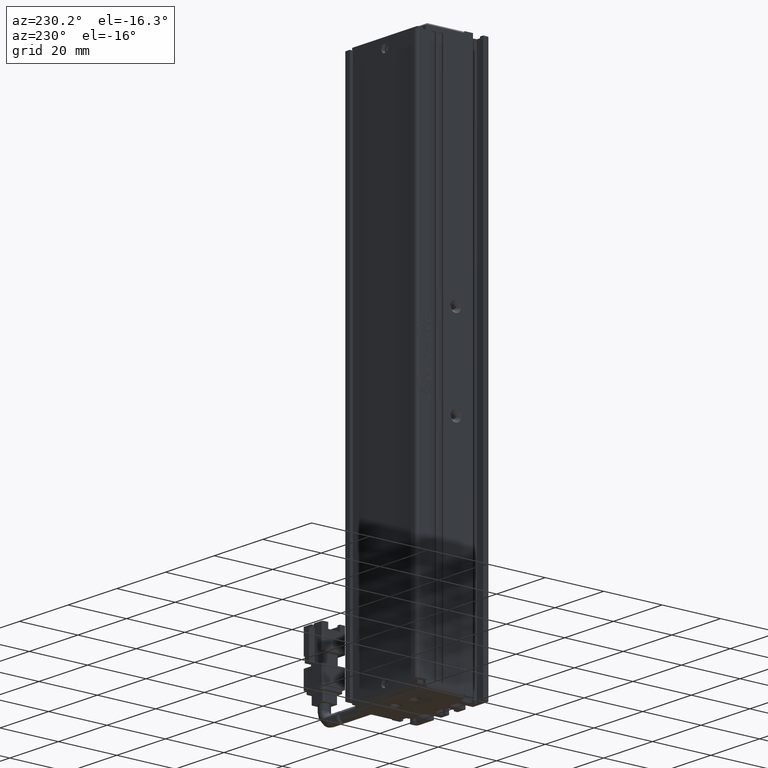
[diagram: clean part render]
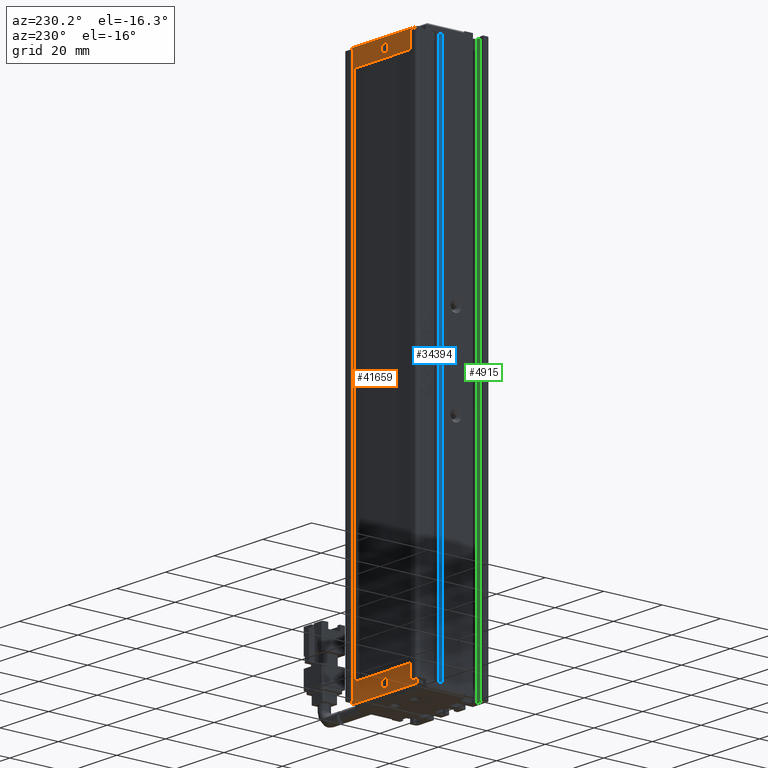
[diagram: same view with three faces highlighted in distinct colors, each labeled with its STEP entity id]
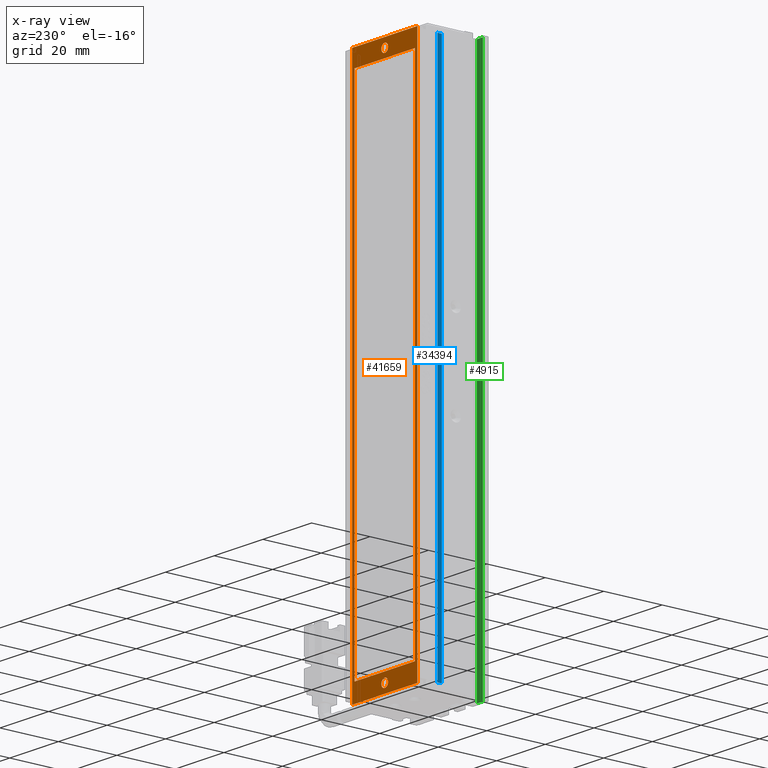
[diagram: x-ray of the same camera — body ghosted, the three highlighted faces saturated]
A machine part, auxiliary view with three faces highlighted in distinct colors.
The next image is the same camera in x-ray (body ghosted, the three faces saturated) — at least one of them is partly hidden behind the body in this view.
Their STEP definitions:

[orange] entity #41659 — the highlighted planar face has unit normal (-0, 1, 0).
#517 = LINE ( 'NONE', #39525, #18274 ) ;
#904 = VERTEX_POINT ( 'NONE', #18212 ) ;
#1120 = EDGE_CURVE ( 'NONE', #37600, #33611, #23385, .T. ) ;
#1175 = VERTEX_POINT ( 'NONE', #37904 ) ;
#1457 = CARTESIAN_POINT ( 'NONE',  ( 53.32537974683541600, 34.19594479660386800, -30.85000000000000100 ) ) ;
#1552 = CARTESIAN_POINT ( 'NONE',  ( 28.52537974683541600, 34.19594479660386800, -30.85000000000000100 ) ) ;
#1686 = VECTOR ( 'NONE', #34123, 1000.000000000000000 ) ;
#1720 = VECTOR ( 'NONE', #15315, 1000.000000000000000 ) ;
#1872 = CIRCLE ( 'NONE', #8053, 1.399999999999998600 ) ;
#2694 = CARTESIAN_POINT ( 'NONE',  ( 54.32537974683539500, 34.19594479660386800, -205.0000000000000000 ) ) ;
#2729 = LINE ( 'NONE', #7997, #20519 ) ;
#2759 = LINE ( 'NONE', #37442, #1686 ) ;
#2965 = PLANE ( 'NONE',  #40819 ) ;
#3867 = EDGE_LOOP ( 'NONE', ( #41657, #12919, #6493, #41032 ) ) ;
#3874 = VERTEX_POINT ( 'NONE', #8227 ) ;
#3949 = CARTESIAN_POINT ( 'NONE',  ( 28.52537974683541600, 34.19594479660386800, -198.8500000000000200 ) ) ;
#4084 = EDGE_CURVE ( 'NONE', #34991, #1175, #42240, .T. ) ;
#6493 = ORIENTED_EDGE ( 'NONE', *, *, #31941, .T. ) ;
#6837 = EDGE_CURVE ( 'NONE', #27129, #35810, #29264, .T. ) ;
#7318 = FACE_BOUND ( 'NONE', #25304, .T. ) ;
#7997 = CARTESIAN_POINT ( 'NONE',  ( 53.32537974683541600, 34.19594479660386800, -198.8500000000000200 ) ) ;
#8053 = AXIS2_PLACEMENT_3D ( 'NONE', #18648, #41988, #22040 ) ;
#8227 = CARTESIAN_POINT ( 'NONE',  ( 40.92537974683538900, 34.19594479660386800, -203.4000000000000100 ) ) ;
#8943 = EDGE_CURVE ( 'NONE', #31298, #27129, #517, .T. ) ;
#9733 = DIRECTION ( 'NONE',  ( 1.779758311459931700E-016, -0.0000000000000000000, 1.000000000000000000 ) ) ;
#9874 = CARTESIAN_POINT ( 'NONE',  ( 27.52537974683542300, 34.19594479660386800, -24.99999999999999300 ) ) ;
#10143 = DIRECTION ( 'NONE',  ( -0.0000000000000000000, -1.000000000000000000, -0.0000000000000000000 ) ) ;
#10531 = VECTOR ( 'NONE', #41953, 1000.000000000000000 ) ;
#10874 = CARTESIAN_POINT ( 'NONE',  ( 40.92537974683538900, 34.19594479660386800, -200.5999999999999700 ) ) ;
#11442 = VECTOR ( 'NONE', #39302, 1000.000000000000000 ) ;
#11976 = CARTESIAN_POINT ( 'NONE',  ( 53.32537974683541600, 34.19594479660386800, -30.85000000000000100 ) ) ;
#12919 = ORIENTED_EDGE ( 'NONE', *, *, #1120, .T. ) ;
#13403 = ORIENTED_EDGE ( 'NONE', *, *, #19464, .F. ) ;
#13640 = EDGE_CURVE ( 'NONE', #30630, #37600, #19485, .T. ) ;
#15243 = CARTESIAN_POINT ( 'NONE',  ( 27.52537974683539100, 34.19594479660386800, -205.0000000000000000 ) ) ;
#15315 = DIRECTION ( 'NONE',  ( 0.0000000000000000000, 0.0000000000000000000, -1.000000000000000000 ) ) ;
#16304 = DIRECTION ( 'NONE',  ( 0.0000000000000000000, 0.0000000000000000000, 1.000000000000000000 ) ) ;
#17323 = FACE_BOUND ( 'NONE', #35745, .T. ) ;
#17882 = CARTESIAN_POINT ( 'NONE',  ( 27.52537974683542300, 34.19594479660386800, -24.99999999999999300 ) ) ;
#18082 = DIRECTION ( 'NONE',  ( -0.0000000000000000000, -1.000000000000000000, -0.0000000000000000000 ) ) ;
#18212 = CARTESIAN_POINT ( 'NONE',  ( 53.32537974683541600, 34.19594479660386800, -198.8500000000000200 ) ) ;
#18274 = VECTOR ( 'NONE', #16304, 1000.000000000000000 ) ;
#18318 = AXIS2_PLACEMENT_3D ( 'NONE', #35423, #35271, #35225 ) ;
#18648 = CARTESIAN_POINT ( 'NONE',  ( 40.92537974683541800, 34.19594479660386800, -27.99999999999999600 ) ) ;
#19214 = AXIS2_PLACEMENT_3D ( 'NONE', #30215, #10143, #33539 ) ;
#19464 = EDGE_CURVE ( 'NONE', #35810, #904, #19540, .T. ) ;
#19485 = LINE ( 'NONE', #22007, #10531 ) ;
#19540 = LINE ( 'NONE', #11976, #1720 ) ;
#19776 = DIRECTION ( 'NONE',  ( -0.0000000000000000000, 1.000000000000000000, 0.0000000000000000000 ) ) ;
#19847 = EDGE_CURVE ( 'NONE', #904, #31298, #2729, .T. ) ;
#20383 = CARTESIAN_POINT ( 'NONE',  ( 27.52537974683541600, 34.19594479660386800, -24.99999999999999300 ) ) ;
#20519 = VECTOR ( 'NONE', #31420, 1000.000000000000000 ) ;
#21682 = ORIENTED_EDGE ( 'NONE', *, *, #19847, .F. ) ;
#22007 = CARTESIAN_POINT ( 'NONE',  ( 27.52537974683539100, 34.19594479660386800, -205.0000000000000000 ) ) ;
#22040 = DIRECTION ( 'NONE',  ( 0.0000000000000000000, 0.0000000000000000000, 1.000000000000000000 ) ) ;
#22131 = VERTEX_POINT ( 'NONE', #10874 ) ;
#22256 = ORIENTED_EDGE ( 'NONE', *, *, #4084, .T. ) ;
#23036 = ORIENTED_EDGE ( 'NONE', *, *, #34605, .T. ) ;
#23385 = LINE ( 'NONE', #9874, #40070 ) ;
#23464 = CARTESIAN_POINT ( 'NONE',  ( 40.92537974683541800, 34.19594479660386800, -26.59999999999999800 ) ) ;
#24800 = ORIENTED_EDGE ( 'NONE', *, *, #26316, .T. ) ;
#25304 = EDGE_LOOP ( 'NONE', ( #22256, #27621 ) ) ;
#26316 = EDGE_CURVE ( 'NONE', #22131, #3874, #30101, .T. ) ;
#27129 = VERTEX_POINT ( 'NONE', #1552 ) ;
#27167 = EDGE_CURVE ( 'NONE', #1175, #34991, #1872, .T. ) ;
#27621 = ORIENTED_EDGE ( 'NONE', *, *, #27167, .T. ) ;
#28317 = ORIENTED_EDGE ( 'NONE', *, *, #8943, .F. ) ;
#28944 = EDGE_LOOP ( 'NONE', ( #21682, #13403, #39783, #28317 ) ) ;
#29264 = LINE ( 'NONE', #39006, #11442 ) ;
#29508 = CIRCLE ( 'NONE', #30463, 1.400000000000012300 ) ;
#30101 = CIRCLE ( 'NONE', #19214, 1.400000000000012300 ) ;
#30215 = CARTESIAN_POINT ( 'NONE',  ( 40.92537974683538900, 34.19594479660386800, -201.9999999999999700 ) ) ;
#30463 = AXIS2_PLACEMENT_3D ( 'NONE', #38096, #18082, #41403 ) ;
#30630 = VERTEX_POINT ( 'NONE', #2694 ) ;
#31298 = VERTEX_POINT ( 'NONE', #3949 ) ;
#31420 = DIRECTION ( 'NONE',  ( -1.000000000000000000, 0.0000000000000000000, 0.0000000000000000000 ) ) ;
#31941 = EDGE_CURVE ( 'NONE', #33611, #41651, #36844, .T. ) ;
#33539 = DIRECTION ( 'NONE',  ( 0.0000000000000000000, 0.0000000000000000000, 1.000000000000000000 ) ) ;
#33611 = VERTEX_POINT ( 'NONE', #20383 ) ;
#34123 = DIRECTION ( 'NONE',  ( -1.711593829630449500E-016, -0.0000000000000000000, -1.000000000000000000 ) ) ;
#34524 = DIRECTION ( 'NONE',  ( 1.000000000000000000, 0.0000000000000000000, -5.551115123125781500E-017 ) ) ;
#34605 = EDGE_CURVE ( 'NONE', #3874, #22131, #29508, .T. ) ;
#34991 = VERTEX_POINT ( 'NONE', #23464 ) ;
#35079 = FACE_OUTER_BOUND ( 'NONE', #3867, .T. ) ;
#35225 = DIRECTION ( 'NONE',  ( 0.0000000000000000000, 0.0000000000000000000, 1.000000000000000000 ) ) ;
#35271 = DIRECTION ( 'NONE',  ( -0.0000000000000000000, -1.000000000000000000, -0.0000000000000000000 ) ) ;
#35423 = CARTESIAN_POINT ( 'NONE',  ( 40.92537974683541800, 34.19594479660386800, -27.99999999999999600 ) ) ;
#35745 = EDGE_LOOP ( 'NONE', ( #24800, #23036 ) ) ;
#35810 = VERTEX_POINT ( 'NONE', #1457 ) ;
#35816 = VECTOR ( 'NONE', #34524, 1000.000000000000000 ) ;
#36255 = CARTESIAN_POINT ( 'NONE',  ( 54.32537974683541600, 34.19594479660386800, -24.99999999999999300 ) ) ;
#36844 = LINE ( 'NONE', #17882, #35816 ) ;
#37442 = CARTESIAN_POINT ( 'NONE',  ( 54.32537974683541600, 34.19594479660386800, -24.99999999999999300 ) ) ;
#37600 = VERTEX_POINT ( 'NONE', #15243 ) ;
#37904 = CARTESIAN_POINT ( 'NONE',  ( 40.92537974683541800, 34.19594479660386800, -29.39999999999999500 ) ) ;
#38096 = CARTESIAN_POINT ( 'NONE',  ( 40.92537974683538900, 34.19594479660386800, -201.9999999999999700 ) ) ;
#39006 = CARTESIAN_POINT ( 'NONE',  ( 28.52537974683541600, 34.19594479660386800, -30.85000000000000100 ) ) ;
#39302 = DIRECTION ( 'NONE',  ( 1.000000000000000000, 0.0000000000000000000, 0.0000000000000000000 ) ) ;
#39525 = CARTESIAN_POINT ( 'NONE',  ( 28.52537974683541600, 34.19594479660386800, -198.8500000000000200 ) ) ;
#39720 = EDGE_CURVE ( 'NONE', #41651, #30630, #2759, .T. ) ;
#39763 = CARTESIAN_POINT ( 'NONE',  ( 54.32537974683541600, 34.19594479660386800, -24.99999999999999300 ) ) ;
#39783 = ORIENTED_EDGE ( 'NONE', *, *, #6837, .F. ) ;
#40070 = VECTOR ( 'NONE', #9733, 1000.000000000000000 ) ;
#40819 = AXIS2_PLACEMENT_3D ( 'NONE', #39763, #19776, #43136 ) ;
#41032 = ORIENTED_EDGE ( 'NONE', *, *, #39720, .T. ) ;
#41403 = DIRECTION ( 'NONE',  ( 0.0000000000000000000, 0.0000000000000000000, 1.000000000000000000 ) ) ;
#41651 = VERTEX_POINT ( 'NONE', #36255 ) ;
#41657 = ORIENTED_EDGE ( 'NONE', *, *, #13640, .T. ) ;
#41659 = ADVANCED_FACE ( 'NONE', ( #35079, #7318, #17323, #41841 ), #2965, .T. ) ;
#41841 = FACE_BOUND ( 'NONE', #28944, .T. ) ;
#41953 = DIRECTION ( 'NONE',  ( -1.000000000000000000, -0.0000000000000000000, 5.551115123125781500E-017 ) ) ;
#41988 = DIRECTION ( 'NONE',  ( -0.0000000000000000000, -1.000000000000000000, -0.0000000000000000000 ) ) ;
#42240 = CIRCLE ( 'NONE', #18318, 1.399999999999998600 ) ;
#43136 = DIRECTION ( 'NONE',  ( 5.551115123125781500E-017, 0.0000000000000000000, 1.000000000000000000 ) ) ;

[blue] entity #34394 — the highlighted planar face has unit normal (1, 0, -0).
#912 = EDGE_CURVE ( 'NONE', #17155, #35407, #11888, .T. ) ;
#1852 = LINE ( 'NONE', #22475, #43176 ) ;
#2534 = CARTESIAN_POINT ( 'NONE',  ( 26.42537974683541800, 26.69594479660386800, -25.99999999999999600 ) ) ;
#2855 = EDGE_CURVE ( 'NONE', #11232, #39496, #3515, .T. ) ;
#3051 = VECTOR ( 'NONE', #17831, 1000.000000000000000 ) ;
#3515 = LINE ( 'NONE', #18481, #21313 ) ;
#4822 = EDGE_LOOP ( 'NONE', ( #30992, #30308, #18186, #32758 ) ) ;
#7000 = FACE_OUTER_BOUND ( 'NONE', #4822, .T. ) ;
#7996 = CARTESIAN_POINT ( 'NONE',  ( 26.42537974683541800, 26.69594479660386800, -204.0000000000000300 ) ) ;
#8875 = DIRECTION ( 'NONE',  ( 1.000000000000000000, 0.0000000000000000000, -0.0000000000000000000 ) ) ;
#10719 = CARTESIAN_POINT ( 'NONE',  ( 26.42537974683542100, 7.083797468354437600, -26.00000000000001100 ) ) ;
#11232 = VERTEX_POINT ( 'NONE', #41301 ) ;
#11438 = CARTESIAN_POINT ( 'NONE',  ( 26.42537974683542100, 26.69594479660386800, -24.00000000000000700 ) ) ;
#11888 = LINE ( 'NONE', #11438, #3051 ) ;
#12079 = PLANE ( 'NONE',  #29012 ) ;
#12363 = CARTESIAN_POINT ( 'NONE',  ( 26.42537974683541800, 28.19594479660387500, -25.99999999999999600 ) ) ;
#14096 = LINE ( 'NONE', #10719, #30864 ) ;
#14100 = DIRECTION ( 'NONE',  ( -0.0000000000000000000, -1.000000000000000000, -0.0000000000000000000 ) ) ;
#17155 = VERTEX_POINT ( 'NONE', #7996 ) ;
#17831 = DIRECTION ( 'NONE',  ( -0.0000000000000000000, 0.0000000000000000000, 1.000000000000000000 ) ) ;
#18186 = ORIENTED_EDGE ( 'NONE', *, *, #22436, .F. ) ;
#18481 = CARTESIAN_POINT ( 'NONE',  ( 26.42537974683542100, 28.19594479660387200, -24.00000000000000700 ) ) ;
#20366 = EDGE_CURVE ( 'NONE', #39496, #35407, #14096, .T. ) ;
#21313 = VECTOR ( 'NONE', #23290, 1000.000000000000000 ) ;
#22436 = EDGE_CURVE ( 'NONE', #17155, #11232, #1852, .T. ) ;
#22475 = CARTESIAN_POINT ( 'NONE',  ( 26.42537974683542100, 7.083797468354437600, -204.0000000000000300 ) ) ;
#23290 = DIRECTION ( 'NONE',  ( 0.0000000000000000000, -0.0000000000000000000, 1.000000000000000000 ) ) ;
#28880 = CARTESIAN_POINT ( 'NONE',  ( 26.42537974683542100, 7.083797468354437600, -24.00000000000000700 ) ) ;
#29012 = AXIS2_PLACEMENT_3D ( 'NONE', #28880, #8875, #32239 ) ;
#30308 = ORIENTED_EDGE ( 'NONE', *, *, #2855, .F. ) ;
#30864 = VECTOR ( 'NONE', #14100, 1000.000000000000000 ) ;
#30992 = ORIENTED_EDGE ( 'NONE', *, *, #20366, .F. ) ;
#32239 = DIRECTION ( 'NONE',  ( -0.0000000000000000000, 0.0000000000000000000, -1.000000000000000000 ) ) ;
#32490 = DIRECTION ( 'NONE',  ( 0.0000000000000000000, 1.000000000000000000, 0.0000000000000000000 ) ) ;
#32758 = ORIENTED_EDGE ( 'NONE', *, *, #912, .T. ) ;
#34394 = ADVANCED_FACE ( 'NONE', ( #7000 ), #12079, .F. ) ;
#35407 = VERTEX_POINT ( 'NONE', #2534 ) ;
#39496 = VERTEX_POINT ( 'NONE', #12363 ) ;
#41301 = CARTESIAN_POINT ( 'NONE',  ( 26.42537974683541800, 28.19594479660387500, -204.0000000000000300 ) ) ;
#43176 = VECTOR ( 'NONE', #32490, 1000.000000000000000 ) ;

[green] entity #4915 — the highlighted planar face has unit normal (0, -1, 0).
#263 = VERTEX_POINT ( 'NONE', #31024 ) ;
#1691 = DIRECTION ( 'NONE',  ( -1.000000000000000000, -0.0000000000000000000, -0.0000000000000000000 ) ) ;
#2635 = DIRECTION ( 'NONE',  ( 0.0000000000000000000, -0.0000000000000000000, -1.000000000000000000 ) ) ;
#2667 = DIRECTION ( 'NONE',  ( 0.0000000000000000000, -1.000000000000000000, 0.0000000000000000000 ) ) ;
#2716 = CARTESIAN_POINT ( 'NONE',  ( 40.92537974683542500, 11.99594479660386900, -24.00000000000000700 ) ) ;
#3228 = EDGE_CURVE ( 'NONE', #12790, #40446, #34874, .T. ) ;
#3561 = VECTOR ( 'NONE', #28500, 1000.000000000000000 ) ;
#4031 = CARTESIAN_POINT ( 'NONE',  ( 27.22537974683542200, 11.99594479660386900, -24.00000000000000700 ) ) ;
#4915 = ADVANCED_FACE ( 'NONE', ( #21374 ), #5313, .F. ) ;
#5313 = PLANE ( 'NONE',  #43271 ) ;
#6083 = CARTESIAN_POINT ( 'NONE',  ( 27.22537974683542600, 11.99594479660386900, -24.00000000000000700 ) ) ;
#8470 = CARTESIAN_POINT ( 'NONE',  ( 29.72537974683542600, 11.99594479660386900, -24.00000000000000700 ) ) ;
#8536 = VECTOR ( 'NONE', #1691, 1000.000000000000000 ) ;
#12445 = LINE ( 'NONE', #8470, #3561 ) ;
#12619 = EDGE_CURVE ( 'NONE', #40446, #263, #23505, .T. ) ;
#12790 = VERTEX_POINT ( 'NONE', #41370 ) ;
#13382 = ORIENTED_EDGE ( 'NONE', *, *, #12619, .F. ) ;
#15621 = VECTOR ( 'NONE', #33983, 1000.000000000000000 ) ;
#16170 = ORIENTED_EDGE ( 'NONE', *, *, #33758, .F. ) ;
#20358 = ORIENTED_EDGE ( 'NONE', *, *, #3228, .F. ) ;
#21374 = FACE_OUTER_BOUND ( 'NONE', #28304, .T. ) ;
#21763 = CARTESIAN_POINT ( 'NONE',  ( 40.92537974683542500, 11.99594479660386900, -206.0000000000000300 ) ) ;
#22390 = VERTEX_POINT ( 'NONE', #25674 ) ;
#23505 = LINE ( 'NONE', #4031, #15621 ) ;
#23616 = ORIENTED_EDGE ( 'NONE', *, *, #34657, .T. ) ;
#25674 = CARTESIAN_POINT ( 'NONE',  ( 29.72537974683542900, 11.99594479660386900, -206.0000000000000300 ) ) ;
#28304 = EDGE_LOOP ( 'NONE', ( #13382, #20358, #16170, #23616 ) ) ;
#28500 = DIRECTION ( 'NONE',  ( -0.0000000000000000000, 0.0000000000000000000, 1.000000000000000000 ) ) ;
#31024 = CARTESIAN_POINT ( 'NONE',  ( 27.22537974683542600, 11.99594479660386900, -206.0000000000000300 ) ) ;
#33758 = EDGE_CURVE ( 'NONE', #22390, #12790, #12445, .T. ) ;
#33983 = DIRECTION ( 'NONE',  ( 0.0000000000000000000, -0.0000000000000000000, -1.000000000000000000 ) ) ;
#34196 = LINE ( 'NONE', #21763, #8536 ) ;
#34657 = EDGE_CURVE ( 'NONE', #22390, #263, #34196, .T. ) ;
#34874 = LINE ( 'NONE', #35877, #42702 ) ;
#35598 = DIRECTION ( 'NONE',  ( -1.000000000000000000, -0.0000000000000000000, -0.0000000000000000000 ) ) ;
#35877 = CARTESIAN_POINT ( 'NONE',  ( 40.92537974683542500, 11.99594479660386900, -24.00000000000000700 ) ) ;
#40446 = VERTEX_POINT ( 'NONE', #6083 ) ;
#41370 = CARTESIAN_POINT ( 'NONE',  ( 29.72537974683542900, 11.99594479660386900, -24.00000000000000700 ) ) ;
#42702 = VECTOR ( 'NONE', #35598, 1000.000000000000000 ) ;
#43271 = AXIS2_PLACEMENT_3D ( 'NONE', #2716, #2667, #2635 ) ;